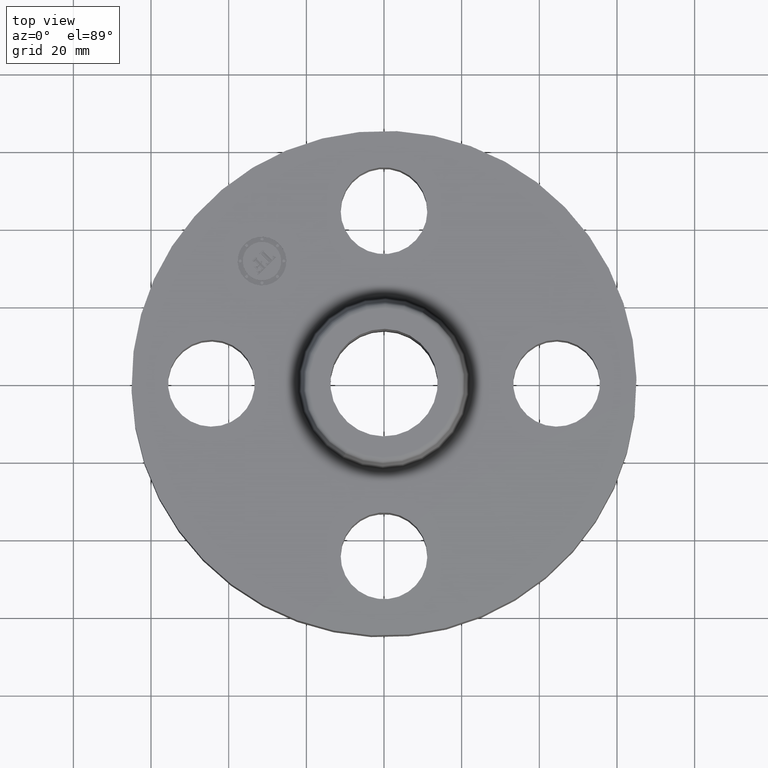
[diagram: clean part render]
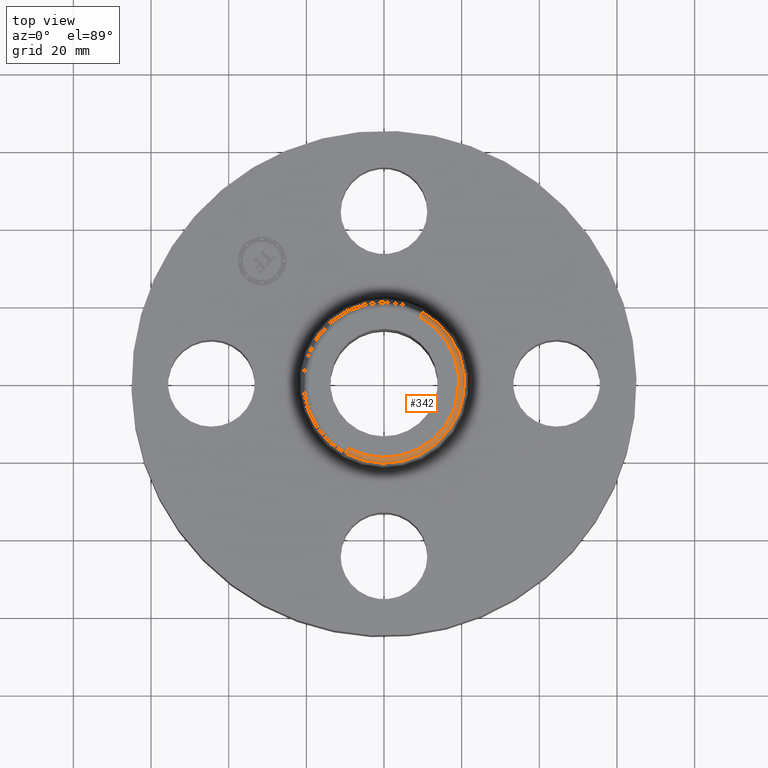
[diagram: same view with one face highlighted and labeled with its STEP entity id]
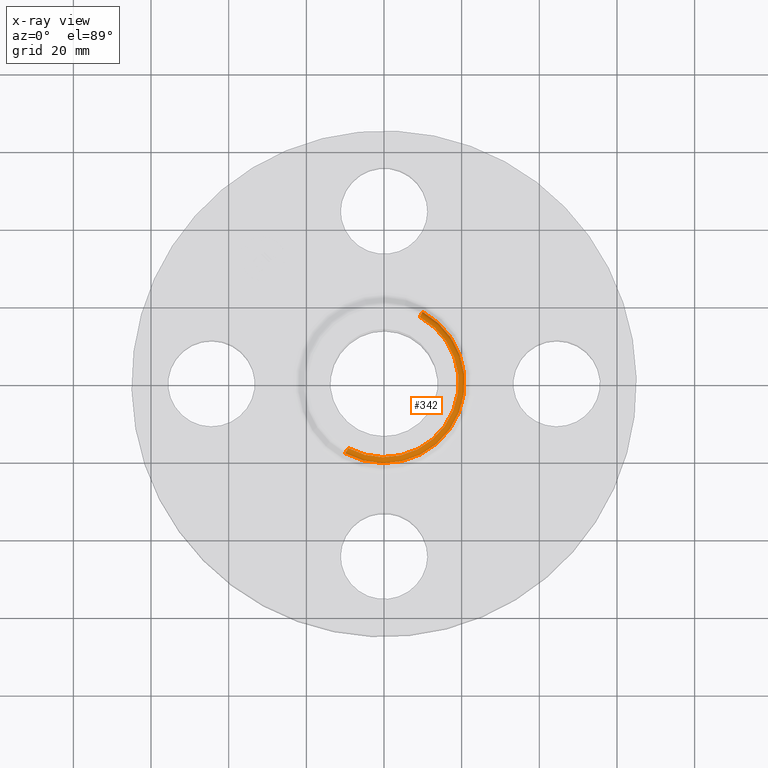
[diagram: x-ray of the same camera — body ghosted, the highlighted face saturated]
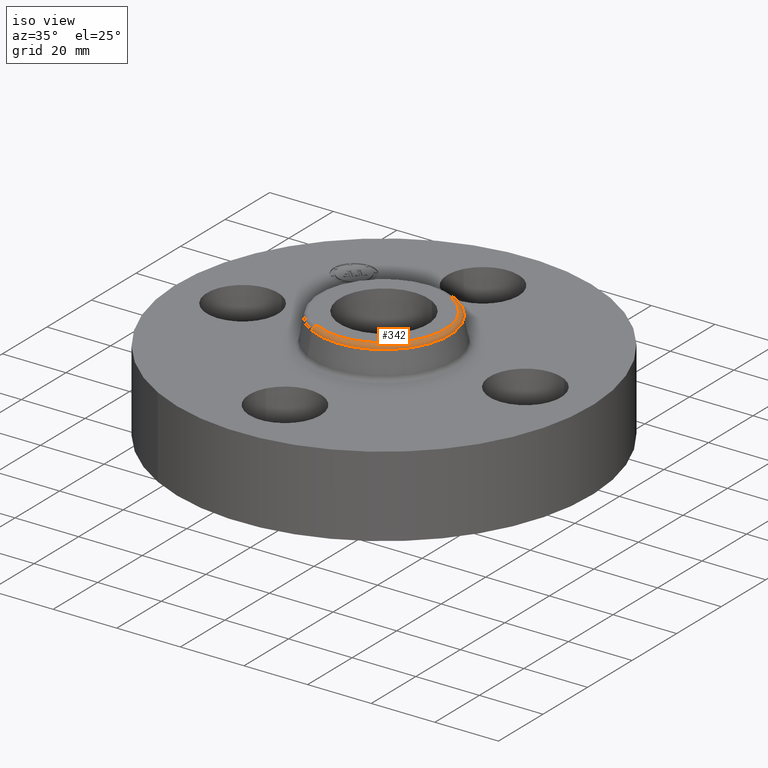
[diagram: same view with one face highlighted and labeled with its STEP entity id]
A machine part, top view. The second image highlights one B-rep face of the part: STEP entity #342.
The next image is the same camera in x-ray: the body ghosted, the highlighted face saturated — about 0% of this face is hidden behind the body in this view.
A second angle (iso view) of the same face is appended — the face is thin or edge-on in the first view.
In plain terms, the highlighted toroidal blend (fillet) surface has major radius 19.2443 mm and minor (blend) radius 1.524 mm.
Its self-contained STEP definition (entity closure, byte-faithful):
#283=AXIS2_PLACEMENT_3D('Circle Axis2P3D',#281,#282,$) ;
#315=AXIS2_PLACEMENT_3D('Torus Axis2P3D',#312,#313,#314) ;
#319=AXIS2_PLACEMENT_3D('Circle Axis2P3D',#317,#318,$) ;
#326=AXIS2_PLACEMENT_3D('Circle Axis2P3D',#324,#325,$) ;
#333=AXIS2_PLACEMENT_3D('Circle Axis2P3D',#331,#332,$) ;
#278=CARTESIAN_POINT('Vertex',(0.391565168043,0.716755232353,1.33041889067)) ;
#281=CARTESIAN_POINT('Axis2P3D Location',(0.,0.,1.33041889067)) ;
#285=CARTESIAN_POINT('Vertex',(-0.391565168043,-0.716755232353,1.33041889067)) ;
#312=CARTESIAN_POINT('Axis2P3D Location',(0.,0.,1.32000000001)) ;
#317=CARTESIAN_POINT('Axis2P3D Location',(0.363236648798,0.664900225701,1.32000000001)) ;
#321=CARTESIAN_POINT('Vertex',(0.363236648798,0.664900225701,1.38000000001)) ;
#324=CARTESIAN_POINT('Axis2P3D Location',(0.,0.,1.38000000001)) ;
#328=CARTESIAN_POINT('Vertex',(-0.363236648798,-0.664900225701,1.38000000001)) ;
#331=CARTESIAN_POINT('Axis2P3D Location',(-0.363236648798,-0.664900225701,1.32000000001)) ;
#282=DIRECTION('Axis2P3D Direction',(0.,0.,-0.0393700787402)) ;
#313=DIRECTION('Axis2P3D Direction',(0.,0.,-0.0393700787402)) ;
#314=DIRECTION('Axis2P3D XDirection',(-0.0188750212049,-0.0345504945626,0.)) ;
#318=DIRECTION('Axis2P3D Direction',(-0.0345504945626,0.0188750212049,0.)) ;
#325=DIRECTION('Axis2P3D Direction',(0.,0.,-0.0393700787402)) ;
#332=DIRECTION('Axis2P3D Direction',(0.0345504945626,-0.0188750212049,0.)) ;
#337=ORIENTED_EDGE('',*,*,#287,.F.) ;
#338=ORIENTED_EDGE('',*,*,#323,.T.) ;
#339=ORIENTED_EDGE('',*,*,#330,.T.) ;
#340=ORIENTED_EDGE('',*,*,#335,.F.) ;
#342=ADVANCED_FACE('PartBody',(#341),#316,.T.) ;
#284=CIRCLE('generated circle',#283,0.816738234644) ;
#320=CIRCLE('generated circle',#319,0.0600000000002) ;
#327=CIRCLE('generated circle',#326,0.757649769463) ;
#334=CIRCLE('generated circle',#333,0.0600000000002) ;
#316=TOROIDAL_SURFACE('homeo Torus',#315,0.757649769463,0.0600000000002) ;
#287=EDGE_CURVE('',#279,#286,#284,.T.) ;
#323=EDGE_CURVE('',#279,#322,#320,.F.) ;
#330=EDGE_CURVE('',#322,#329,#327,.T.) ;
#335=EDGE_CURVE('',#286,#329,#334,.F.) ;
#336=EDGE_LOOP('',(#337,#338,#339,#340)) ;
#341=FACE_OUTER_BOUND('',#336,.T.) ;
#279=VERTEX_POINT('',#278) ;
#286=VERTEX_POINT('',#285) ;
#322=VERTEX_POINT('',#321) ;
#329=VERTEX_POINT('',#328) ;